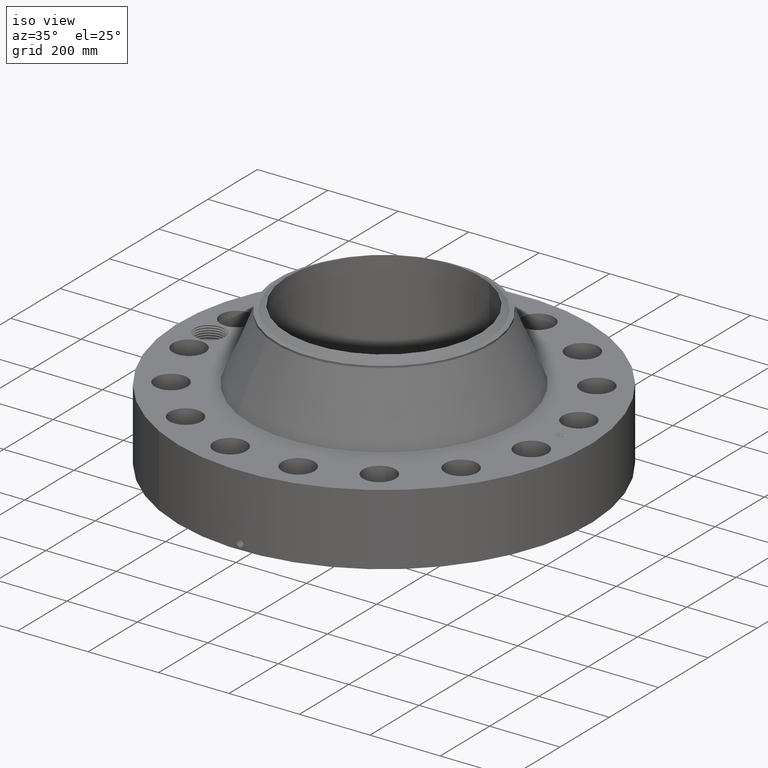
[diagram: clean part render]
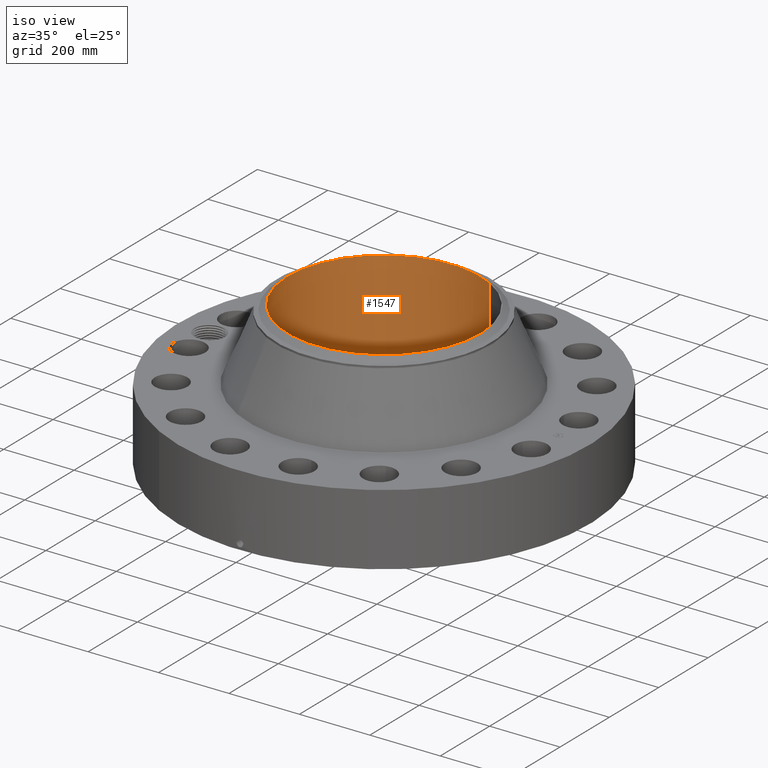
[diagram: same view with one face highlighted and labeled with its STEP entity id]
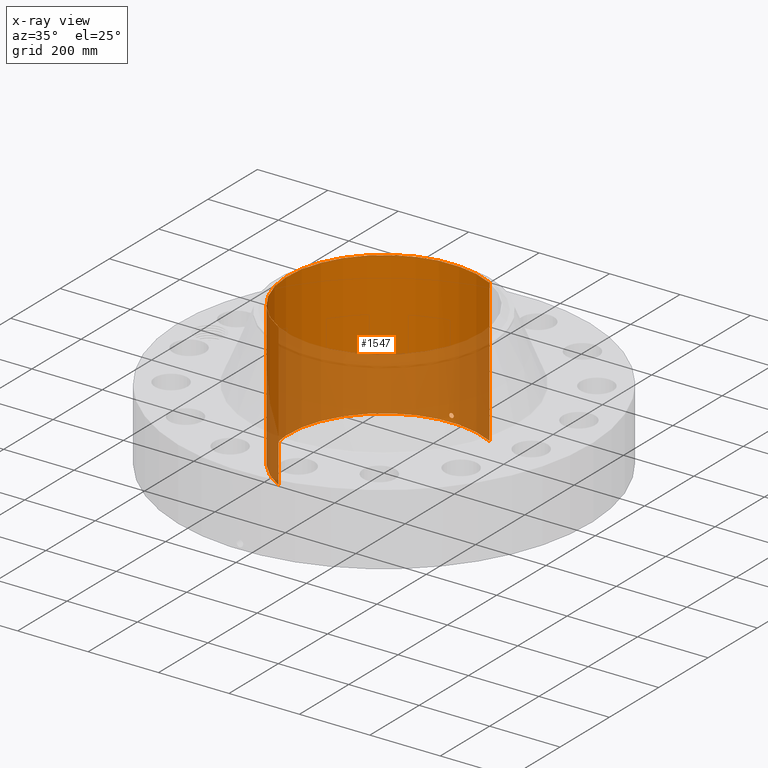
[diagram: x-ray of the same camera — body ghosted, the highlighted face saturated]
A machine part, iso view. The second image highlights one B-rep face of the part: STEP entity #1547.
The next image is the same camera in x-ray: the body ghosted, the highlighted face saturated — about 47% of this face is hidden behind the body in this view.
In plain terms, the highlighted cylindrical surface (partial cylindrical patch) has radius 273.837 mm, axis along (0, 0, -1).
Its self-contained STEP definition (entity closure, byte-faithful):
#269=AXIS2_PLACEMENT_3D('Circle Axis2P3D',#267,#268,$) ;
#1424=AXIS2_PLACEMENT_3D('Cylinder Axis2P3D',#1421,#1422,#1423) ;
#1496=AXIS2_PLACEMENT_3D('Circle Axis2P3D',#1494,#1495,$) ;
#262=CARTESIAN_POINT('Vertex',(5.16868673171,9.46121759978,0.250000000001)) ;
#264=CARTESIAN_POINT('Vertex',(-5.16868673171,-9.46121759978,0.250000000001)) ;
#267=CARTESIAN_POINT('Axis2P3D Location',(0.,0.,0.250000000001)) ;
#1421=CARTESIAN_POINT('Axis2P3D Location',(0.,0.,8.25000000003)) ;
#1430=CARTESIAN_POINT('Vertex',(5.16868673171,9.46121759978,16.2500000001)) ;
#1432=CARTESIAN_POINT('Vertex',(-5.16868673171,-9.46121759978,16.2500000001)) ;
#1435=CARTESIAN_POINT('Line Origine',(5.16868673171,9.46121759978,8.25000000003)) ;
#1440=CARTESIAN_POINT('Line Origine',(-5.16868673171,-9.46121759978,8.25000000003)) ;
#1494=CARTESIAN_POINT('Axis2P3D Location',(0.,0.,16.2500000001)) ;
#1506=CARTESIAN_POINT('Control Point',(0.219395640473,10.7787673949,1.05985638466)) ;
#1507=CARTESIAN_POINT('Control Point',(0.194442770613,10.7792752963,1.10553230656)) ;
#1508=CARTESIAN_POINT('Control Point',(0.157604157808,10.7799528878,1.14471304465)) ;
#1509=CARTESIAN_POINT('Control Point',(0.111105136884,10.7806119043,1.17324429368)) ;
#1510=CARTESIAN_POINT('Control Point',(0.0336693198147,10.7811362237,1.19588317002)) ;
#1511=CARTESIAN_POINT('Control Point',(-0.0446758183165,10.7809550036,1.1880557226)) ;
#1512=CARTESIAN_POINT('Control Point',(-0.0703069158878,10.7808143238,1.18204225644)) ;
#1513=CARTESIAN_POINT('Control Point',(-0.143964712453,10.7801926827,1.1542071606)) ;
#1514=CARTESIAN_POINT('Control Point',(-0.203253392549,10.7791780658,1.09948697135)) ;
#1515=CARTESIAN_POINT('Control Point',(-0.232216721937,10.7785126908,1.05324381185)) ;
#1516=CARTESIAN_POINT('Control Point',(-0.255841712213,10.7779658439,0.975098637195)) ;
#1517=CARTESIAN_POINT('Control Point',(-0.248280648465,10.7781407167,0.895737961845)) ;
#1518=CARTESIAN_POINT('Control Point',(-0.242046922514,10.7782869792,0.869178886768)) ;
#1519=CARTESIAN_POINT('Control Point',(-0.232314163988,10.7785044458,0.843790814029)) ;
#1520=CARTESIAN_POINT('Control Point',(-0.219395640473,10.7787673949,0.820143615352)) ;
#1521=CARTESIAN_POINT('Vertex',(0.219395640473,10.7787673949,1.05985638466)) ;
#1523=CARTESIAN_POINT('Vertex',(-0.219395640473,10.7787673949,0.820143615352)) ;
#1527=CARTESIAN_POINT('Control Point',(-0.219395640474,10.7787673949,0.820143615352)) ;
#1528=CARTESIAN_POINT('Control Point',(-0.194442770601,10.7792752963,0.774467693429)) ;
#1529=CARTESIAN_POINT('Control Point',(-0.15760415777,10.7799528878,0.735286955315)) ;
#1530=CARTESIAN_POINT('Control Point',(-0.111105136936,10.7806119043,0.706755706342)) ;
#1531=CARTESIAN_POINT('Control Point',(-0.0336693198398,10.7811362237,0.684116829986)) ;
#1532=CARTESIAN_POINT('Control Point',(0.0446758183201,10.7809550036,0.691944277407)) ;
#1533=CARTESIAN_POINT('Control Point',(0.0703069158833,10.7808143238,0.697957743569)) ;
#1534=CARTESIAN_POINT('Control Point',(0.143964712413,10.7801926827,0.725792839386)) ;
#1535=CARTESIAN_POINT('Control Point',(0.203253392488,10.7791780658,0.780513028604)) ;
#1536=CARTESIAN_POINT('Control Point',(0.232216721961,10.7785126908,0.826756188238)) ;
#1537=CARTESIAN_POINT('Control Point',(0.255841712222,10.7779658439,0.904901362897)) ;
#1538=CARTESIAN_POINT('Control Point',(0.248280648457,10.7781407167,0.984262038253)) ;
#1539=CARTESIAN_POINT('Control Point',(0.242046922546,10.7782869792,1.01082111315)) ;
#1540=CARTESIAN_POINT('Control Point',(0.23231416401,10.7785044458,1.03620918594)) ;
#1541=CARTESIAN_POINT('Control Point',(0.219395640473,10.7787673949,1.05985638466)) ;
#268=DIRECTION('Axis2P3D Direction',(0.,0.,-0.0393700787402)) ;
#1422=DIRECTION('Axis2P3D Direction',(0.,0.,-0.0393700787402)) ;
#1423=DIRECTION('Axis2P3D XDirection',(-0.0188750212049,-0.0345504945626,0.)) ;
#1436=DIRECTION('Vector Direction',(0.,0.,-0.0393700787402)) ;
#1441=DIRECTION('Vector Direction',(0.,0.,-0.0393700787402)) ;
#1495=DIRECTION('Axis2P3D Direction',(0.,0.,-0.0393700787402)) ;
#1437=VECTOR('Line Direction',#1436,0.0393700787402) ;
#1442=VECTOR('Line Direction',#1441,0.0393700787402) ;
#1500=ORIENTED_EDGE('',*,*,#1498,.F.) ;
#1501=ORIENTED_EDGE('',*,*,#1444,.T.) ;
#1502=ORIENTED_EDGE('',*,*,#271,.T.) ;
#1503=ORIENTED_EDGE('',*,*,#1439,.F.) ;
#1544=ORIENTED_EDGE('',*,*,#1525,.F.) ;
#1545=ORIENTED_EDGE('',*,*,#1542,.F.) ;
#1546=FACE_BOUND('',#1543,.T.) ;
#1547=ADVANCED_FACE('PartBody',(#1504,#1546),#1425,.F.) ;
#1505=B_SPLINE_CURVE_WITH_KNOTS('',5,(#1506,#1507,#1508,#1509,#1510,#1511,#1512,#1513,#1514,#1515,#1516,#1517,#1518,#1519,#1520),.UNSPECIFIED.,.F.,.U.,(6,3,3,3,6),(0.,9.3484311279,14.0229867683,23.3730319244,28.2128731142),.UNSPECIFIED.) ;
#1526=B_SPLINE_CURVE_WITH_KNOTS('',5,(#1527,#1528,#1529,#1530,#1531,#1532,#1533,#1534,#1535,#1536,#1537,#1538,#1539,#1540,#1541),.UNSPECIFIED.,.F.,.U.,(6,3,3,3,6),(0.,9.34843113265,14.0229867734,23.3730319223,28.2128731201),.UNSPECIFIED.) ;
#270=CIRCLE('generated circle',#269,10.781) ;
#1497=CIRCLE('generated circle',#1496,10.781) ;
#1425=CYLINDRICAL_SURFACE('generated cylinder',#1424,10.781) ;
#271=EDGE_CURVE('',#265,#263,#270,.T.) ;
#1439=EDGE_CURVE('',#1431,#263,#1438,.T.) ;
#1444=EDGE_CURVE('',#1433,#265,#1443,.T.) ;
#1498=EDGE_CURVE('',#1433,#1431,#1497,.T.) ;
#1525=EDGE_CURVE('',#1522,#1524,#1505,.T.) ;
#1542=EDGE_CURVE('',#1524,#1522,#1526,.T.) ;
#1499=EDGE_LOOP('',(#1500,#1501,#1502,#1503)) ;
#1543=EDGE_LOOP('',(#1544,#1545)) ;
#1504=FACE_OUTER_BOUND('',#1499,.T.) ;
#1438=LINE('Line',#1435,#1437) ;
#1443=LINE('Line',#1440,#1442) ;
#263=VERTEX_POINT('',#262) ;
#265=VERTEX_POINT('',#264) ;
#1431=VERTEX_POINT('',#1430) ;
#1433=VERTEX_POINT('',#1432) ;
#1522=VERTEX_POINT('',#1521) ;
#1524=VERTEX_POINT('',#1523) ;